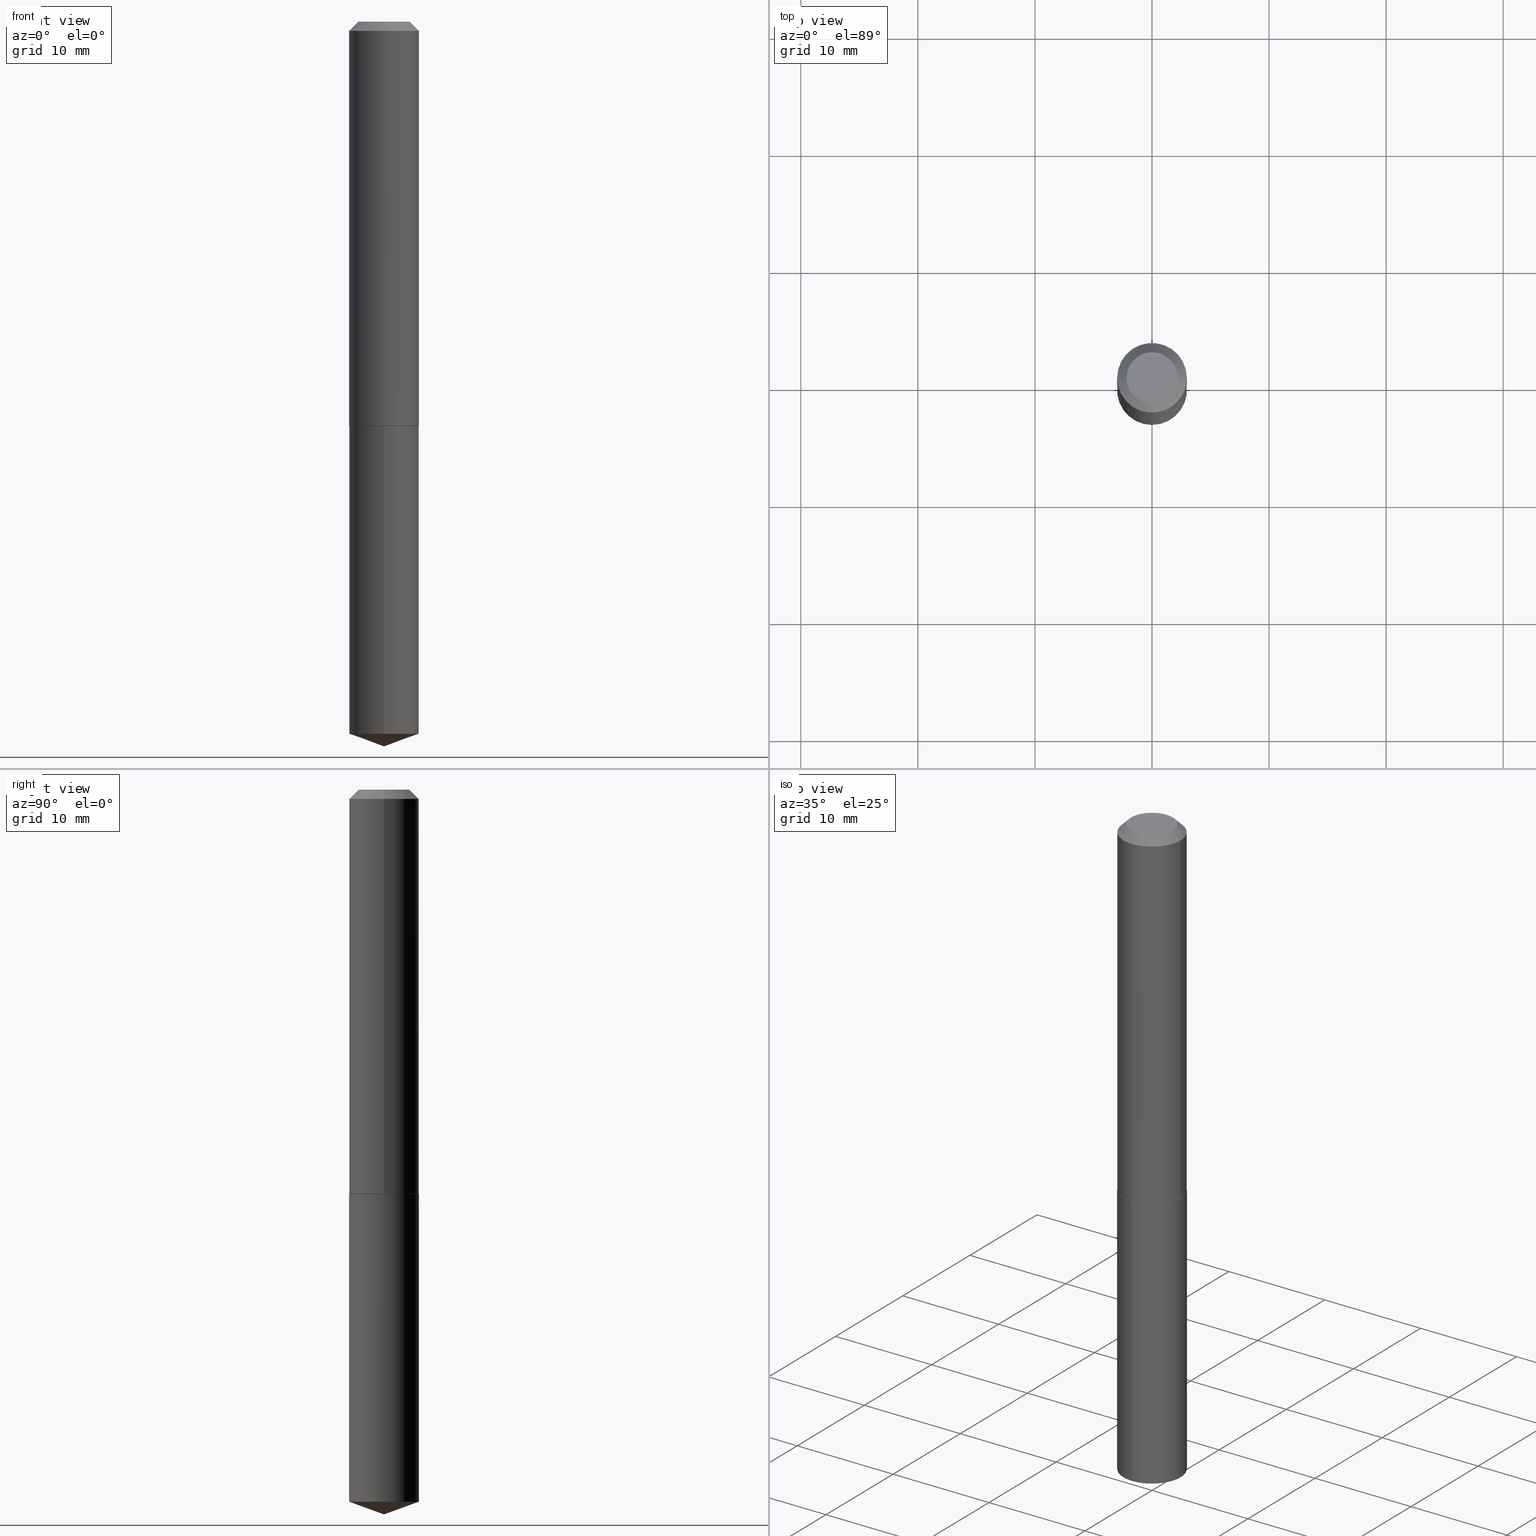
[diagram: canonical four-view strip — front | top / right | iso, engineering-drawing reading convention]
A machine part, canonical four-view strip (front | top / right | iso — engineering-drawing reading convention). The complete STEP part file that produces these views, byte-faithful:
ISO-10303-21;
HEADER;
FILE_DESCRIPTION (( 'STEP AP203' ),
    '1' );
FILE_NAME ('56115.STEP',
    '2024-04-22T20:19:50',
    ( '' ),
    ( '' ),
    'SwSTEP 2.0',
    'SolidWorks 2023',
    '' );
FILE_SCHEMA (( 'CONFIG_CONTROL_DESIGN' ));
ENDSEC;

DATA;
#1 = ORIENTED_EDGE ( 'NONE', *, *, #376, .T. ) ;
#2 =( NAMED_UNIT ( * ) SI_UNIT ( $, .STERADIAN. ) SOLID_ANGLE_UNIT ( ) );
#3 = VERTEX_POINT ( 'NONE', #149 ) ;
#4 = VERTEX_POINT ( 'NONE', #222 ) ;
#5 = CARTESIAN_POINT ( 'NONE',  ( 3.324370295128073356E-29, -4.746319732023370074E-15, -1.359399999999999498 ) ) ;
#6 = DIRECTION ( 'NONE',  ( -2.445468806185136597E-29, 3.491481338843145583E-15, 1.000000000000000000 ) ) ;
#7 = AXIS2_PLACEMENT_3D ( 'NONE', #152, #12, #278 ) ;
#8 = VECTOR ( 'NONE', #209, 39.37007874015748143 ) ;
#9 = DIRECTION ( 'NONE',  ( -2.445468806185136597E-29, 3.491481338843145583E-15, 1.000000000000000000 ) ) ;
#10 = ADVANCED_FACE ( 'NONE', ( #66 ), #335, .T. ) ;
#11 = CARTESIAN_POINT ( 'NONE',  ( 0.000000000000000000, 0.000000000000000000, 0.000000000000000000 ) ) ;
#12 = DIRECTION ( 'NONE',  ( -2.445142826473885278E-29, 3.491948160343270663E-15, 1.000000000000000000 ) ) ;
#13 = CONICAL_SURFACE ( 'NONE', #360, 0.1172000000000001929, 0.7853981633978580623 ) ;
#14 = CARTESIAN_POINT ( 'NONE',  ( 0.000000000000000000, 0.000000000000000000, 0.000000000000000000 ) ) ;
#15 = ADVANCED_FACE ( 'NONE', ( #38 ), #343, .T. ) ;
#16 = DIMENSIONAL_EXPONENTS ( 1.000000000000000000, 0.000000000000000000, 0.000000000000000000, 0.000000000000000000, 0.000000000000000000, 0.000000000000000000, 0.000000000000000000 ) ;
#17 = LINE ( 'NONE', #298, #49 ) ;
#18 = DIRECTION ( 'NONE',  ( 6.982962677686265922E-15, 1.000000000000000000, -3.491948160343270663E-15 ) ) ;
#19 = DIRECTION ( 'NONE',  ( -2.445142826473885278E-29, 3.491948160343270663E-15, 1.000000000000000000 ) ) ;
#20 = VECTOR ( 'NONE', #255, 39.37007874015748143 ) ;
#21 = LOCAL_TIME ( 16, 19, 50.00000000000000000, #87 ) ;
#22 = DIRECTION ( 'NONE',  ( 1.000000000000000000, -6.982962677686266711E-15, 0.000000000000000000 ) ) ;
#23 = DIRECTION ( 'NONE',  ( -0.7071067811865451302, 2.468850131082231817E-15, -0.7071067811865499042 ) ) ;
#24 = EDGE_LOOP ( 'NONE', ( #264, #110 ) ) ;
#25 = MECHANICAL_CONTEXT ( 'NONE', #196, 'mechanical' ) ;
#26 = ORIENTED_EDGE ( 'NONE', *, *, #203, .F. ) ;
#27 = ORIENTED_EDGE ( 'NONE', *, *, #113, .F. ) ;
#28 = ADVANCED_FACE ( 'NONE', ( #344 ), #237, .T. ) ;
#29 =( NAMED_UNIT ( * ) PLANE_ANGLE_UNIT ( ) SI_UNIT ( $, .RADIAN. ) );
#30 = ORIENTED_EDGE ( 'NONE', *, *, #277, .F. ) ;
#31 = LENGTH_MEASURE_WITH_UNIT ( LENGTH_MEASURE( 0.02539999999999999897 ), #211 );
#32 = EDGE_LOOP ( 'NONE', ( #385, #1, #88, #231 ) ) ;
#33 = AXIS2_PLACEMENT_3D ( 'NONE', #219, #37, #64 ) ;
#34 = PRODUCT_DEFINITION_FORMATION_WITH_SPECIFIED_SOURCE ( 'ANY', '', #381, .NOT_KNOWN. ) ;
#35 = DIRECTION ( 'NONE',  ( -2.445468806185136597E-29, 3.491481338843145583E-15, 1.000000000000000000 ) ) ;
#36 = SECURITY_CLASSIFICATION_LEVEL ( 'unclassified' ) ;
#37 = DIRECTION ( 'NONE',  ( 2.438088387897960049E-29, -3.491481338843145188E-15, -1.000000000000000000 ) ) ;
#38 = FACE_OUTER_BOUND ( 'NONE', #362, .T. ) ;
#39 = LOCAL_TIME ( 16, 19, 50.00000000000000000, #341 ) ;
#40 = DIRECTION ( 'NONE',  ( -2.445468806185136597E-29, 3.491481338843145583E-15, 1.000000000000000000 ) ) ;
#41 = DESIGN_CONTEXT ( 'detailed design', #57, 'design' ) ;
#42 = DIRECTION ( 'NONE',  ( -2.445142826473885278E-29, 3.491948160343270663E-15, 1.000000000000000000 ) ) ;
#43 = CARTESIAN_POINT ( 'NONE',  ( 5.960035639530094647E-29, -8.511623640836722067E-15, -2.437500000000000000 ) ) ;
#44 = LINE ( 'NONE', #161, #131 ) ;
#45 = CARTESIAN_POINT ( 'NONE',  ( 7.642090019328600035E-31, -1.091087918388489897E-16, -0.03125000000000020123 ) ) ;
#46 = DIRECTION ( 'NONE',  ( 2.445468806185136597E-29, -3.491481338843145583E-15, -1.000000000000000000 ) ) ;
#47 = CIRCLE ( 'NONE', #193, 0.1171999999999999986 ) ;
#48 = DIRECTION ( 'NONE',  ( -6.982962677686265922E-15, -1.000000000000000000, 2.330928322239132474E-15 ) ) ;
#49 = VECTOR ( 'NONE', #23, 39.37007874015748143 ) ;
#50 = DATE_AND_TIME ( #143, #21 ) ;
#51 = EDGE_LOOP ( 'NONE', ( #106, #244, #350, #388 ) ) ;
#52 = DATE_AND_TIME ( #356, #321 ) ;
#53 = ORIENTED_EDGE ( 'NONE', *, *, #212, .T. ) ;
#54 = PERSON_AND_ORGANIZATION_ROLE ( 'design_supplier' ) ;
#55 = ORIENTED_EDGE ( 'NONE', *, *, #162, .T. ) ;
#56 = AXIS2_PLACEMENT_3D ( 'NONE', #5, #369, #155 ) ;
#57 = APPLICATION_CONTEXT ( 'configuration controlled 3d designs of mechanical parts and assemblies' ) ;
#58 = EDGE_CURVE ( 'NONE', #330, #185, #123, .T. ) ;
#59 = ORIENTED_EDGE ( 'NONE', *, *, #245, .F. ) ;
#60 = DIRECTION ( 'NONE',  ( -6.982962677686265922E-15, -1.000000000000000000, 2.330928322239132474E-15 ) ) ;
#61 = ORIENTED_EDGE ( 'NONE', *, *, #266, .F. ) ;
#62 = DIRECTION ( 'NONE',  ( -2.445468806185136597E-29, 3.491481338843145583E-15, 1.000000000000000000 ) ) ;
#63 = APPROVAL_PERSON_ORGANIZATION ( #384, #338, #181 ) ;
#64 = DIRECTION ( 'NONE',  ( -1.000000000000000000, 6.982962677686265922E-15, -4.876176775795935793E-29 ) ) ;
#65 = DIRECTION ( 'NONE',  ( -2.445142826473885278E-29, 3.491948160343270663E-15, 1.000000000000000000 ) ) ;
#66 = FACE_OUTER_BOUND ( 'NONE', #317, .T. ) ;
#67 = APPROVAL ( #294, 'UNSPECIFIED' ) ;
#68 = AXIS2_PLACEMENT_3D ( 'NONE', #347, #72, #198 ) ;
#69 = CARTESIAN_POINT ( 'NONE',  ( -9.030498683285852070E-28, 1.289672849855731680E-13, 36.93257874015748143 ) ) ;
#70 = CARTESIAN_POINT ( 'NONE',  ( -0.1172000000000001929, -3.911817905043111360E-15, -1.358899999999999775 ) ) ;
#71 = ADVANCED_BREP_SHAPE_REPRESENTATION ( '56115', ( #199, #336, #328 ), #207 ) ;
#72 = DIRECTION ( 'NONE',  ( -2.445468806185136597E-29, 3.491481338843145583E-15, 1.000000000000000000 ) ) ;
#73 = CLOSED_SHELL ( 'NONE', ( #284, #10, #92, #292, #78, #352, #240, #172 ) ) ;
#74 = CC_DESIGN_SECURITY_CLASSIFICATION ( #147, ( #34 ) ) ;
#75 = DIRECTION ( 'NONE',  ( 2.445468806185136597E-29, -3.491481338843145583E-15, -1.000000000000000000 ) ) ;
#76 = ORIENTED_EDGE ( 'NONE', *, *, #58, .F. ) ;
#77 = DIRECTION ( 'NONE',  ( -2.445468806185136877E-29, 3.491481338843145188E-15, 1.000000000000000000 ) ) ;
#78 = ADVANCED_FACE ( 'NONE', ( #121 ), #177, .T. ) ;
#79 = CARTESIAN_POINT ( 'NONE',  ( 7.642090019328600035E-31, -1.091087918388489897E-16, -0.03125000000000020123 ) ) ;
#80 = CC_DESIGN_APPROVAL ( #67, ( #34 ) ) ;
#81 = APPLICATION_PROTOCOL_DEFINITION ( 'international standard', 'config_control_design', 1994, #196 ) ;
#82 = ORIENTED_EDGE ( 'NONE', *, *, #116, .T. ) ;
#83 = APPROVAL_ROLE ( '' ) ;
#84 = ORIENTED_EDGE ( 'NONE', *, *, #217, .T. ) ;
#85 = CARTESIAN_POINT ( 'NONE',  ( 3.324370295128073917E-29, -4.746319732023370863E-15, -1.359399999999999720 ) ) ;
#86 = ORIENTED_EDGE ( 'NONE', *, *, #134, .F. ) ;
#87 = COORDINATED_UNIVERSAL_TIME_OFFSET ( 5, 0, .BEHIND. ) ;
#88 = ORIENTED_EDGE ( 'NONE', *, *, #165, .F. ) ;
#89 = DIRECTION ( 'NONE',  ( -6.561838499445204007E-15, -0.9396926207859077618, 0.3420201433256704338 ) ) ;
#90 = PLANE ( 'NONE',  #33 ) ;
#91 = AXIS2_PLACEMENT_3D ( 'NONE', #45, #98, #22 ) ;
#92 = ADVANCED_FACE ( 'NONE', ( #195 ), #13, .T. ) ;
#93 = CARTESIAN_POINT ( 'NONE',  ( 3.323147560724981676E-29, -4.744573991353950148E-15, -1.358899999999999775 ) ) ;
#94 = CARTESIAN_POINT ( 'NONE',  ( -0.1171999999999999986, -1.594085305285560836E-15, -0.03125000000000020123 ) ) ;
#95 = CARTESIAN_POINT ( 'NONE',  ( 5.960035639530094647E-29, -8.511623640836722067E-15, -2.437500000000000000 ) ) ;
#96 = AXIS2_PLACEMENT_3D ( 'NONE', #115, #40, #251 ) ;
#97 = AXIS2_PLACEMENT_3D ( 'NONE', #85, #296, #60 ) ;
#98 = DIRECTION ( 'NONE',  ( -2.445468806185136597E-29, 3.491481338843145583E-15, 1.000000000000000000 ) ) ;
#99 = DIRECTION ( 'NONE',  ( -2.445468806185136877E-29, 3.491481338843145188E-15, 1.000000000000000000 ) ) ;
#100 = FACE_OUTER_BOUND ( 'NONE', #111, .T. ) ;
#101 = DIRECTION ( 'NONE',  ( -6.982962677686265922E-15, -1.000000000000000000, 2.330928322239132474E-15 ) ) ;
#102 = DIRECTION ( 'NONE',  ( -6.982962677686265922E-15, -1.000000000000000000, 2.330928322239132474E-15 ) ) ;
#103 = PERSON_AND_ORGANIZATION ( #176, #194 ) ;
#104 = CONICAL_SURFACE ( 'NONE', #124, 0.1171999999999999986, 0.7853981633974449483 ) ;
#105 = CYLINDRICAL_SURFACE ( 'NONE', #97, 0.1171999999999999986 ) ;
#106 = ORIENTED_EDGE ( 'NONE', *, *, #376, .F. ) ;
#107 = DATE_AND_TIME ( #387, #254 ) ;
#108 = VERTEX_POINT ( 'NONE', #337 ) ;
#109 = DATE_TIME_ROLE ( 'creation_date' ) ;
#110 = ORIENTED_EDGE ( 'NONE', *, *, #156, .F. ) ;
#111 = EDGE_LOOP ( 'NONE', ( #26, #164, #82, #359 ) ) ;
#112 = CC_DESIGN_APPROVAL ( #338, ( #378 ) ) ;
#113 = EDGE_CURVE ( 'NONE', #185, #274, #130, .T. ) ;
#114 = ORIENTED_EDGE ( 'NONE', *, *, #235, .F. ) ;
#115 = CARTESIAN_POINT ( 'NONE',  ( 3.323147560724981676E-29, -4.744573991353950148E-15, -1.358899999999999775 ) ) ;
#116 = EDGE_CURVE ( 'NONE', #363, #140, #47, .T. ) ;
#117 = DIRECTION ( 'NONE',  ( 1.000000000000000000, -6.982962677686265922E-15, 4.876153431562314205E-29 ) ) ;
#118 = AXIS2_PLACEMENT_3D ( 'NONE', #312, #42, #370 ) ;
#119 = VECTOR ( 'NONE', #261, 39.37007874015748143 ) ;
#120 = CC_DESIGN_PERSON_AND_ORGANIZATION_ASSIGNMENT ( #223, #252, ( #147 ) ) ;
#121 = FACE_OUTER_BOUND ( 'NONE', #51, .T. ) ;
#122 = DIRECTION ( 'NONE',  ( 1.000000000000000000, -6.982962677686266711E-15, 0.000000000000000000 ) ) ;
#123 = LINE ( 'NONE', #95, #349 ) ;
#124 = AXIS2_PLACEMENT_3D ( 'NONE', #79, #75, #259 ) ;
#125 = AXIS2_PLACEMENT_3D ( 'NONE', #14, #229, #126 ) ;
#126 = DIRECTION ( 'NONE',  ( 1.000000000000000000, -6.982962677686266711E-15, 4.876176775795936353E-29 ) ) ;
#127 = DIRECTION ( 'NONE',  ( -2.445142826473885278E-29, 3.491948160343270663E-15, 1.000000000000000000 ) ) ;
#128 = EDGE_CURVE ( 'NONE', #330, #274, #311, .T. ) ;
#129 = DIRECTION ( 'NONE',  ( -2.445142826473885278E-29, 3.491948160343270663E-15, 1.000000000000000000 ) ) ;
#130 = CIRCLE ( 'NONE', #7, 0.1171999999999999986 ) ;
#131 = VECTOR ( 'NONE', #285, 39.37007874015748143 ) ;
#132 = CARTESIAN_POINT ( 'NONE',  ( 0.1172000000000001929, -5.562977217178781787E-15, -1.358899999999999775 ) ) ;
#133 = CC_DESIGN_PERSON_AND_ORGANIZATION_ASSIGNMENT ( #103, #171, ( #378 ) ) ;
#134 = EDGE_CURVE ( 'NONE', #108, #262, #272, .T. ) ;
#135 = CARTESIAN_POINT ( 'NONE',  ( 8.327560863108961782E-16, 0.1171999999999952663, -1.359399999999999942 ) ) ;
#136 = PERSON_AND_ORGANIZATION_ROLE ( 'design_owner' ) ;
#137 = ORIENTED_EDGE ( 'NONE', *, *, #245, .T. ) ;
#138 = CIRCLE ( 'NONE', #320, 0.1172000000000001929 ) ;
#139 = COORDINATED_UNIVERSAL_TIME_OFFSET ( 5, 0, .BEHIND. ) ;
#140 = VERTEX_POINT ( 'NONE', #94 ) ;
#141 = DIRECTION ( 'NONE',  ( 0.000000000000000000, 0.000000000000000000, 1.000000000000000000 ) ) ;
#142 = ORIENTED_EDGE ( 'NONE', *, *, #364, .F. ) ;
#143 = CALENDAR_DATE ( 2024, 22, 4 ) ;
#144 = ORIENTED_EDGE ( 'NONE', *, *, #165, .T. ) ;
#145 = AXIS2_PLACEMENT_3D ( 'NONE', #375, #129, #258 ) ;
#146 = ORIENTED_EDGE ( 'NONE', *, *, #128, .F. ) ;
#147 = SECURITY_CLASSIFICATION ( '', '', #36 ) ;
#148 = DIRECTION ( 'NONE',  ( 1.000000000000000000, -6.982962677686265922E-15, 4.876153431562314205E-29 ) ) ;
#149 = CARTESIAN_POINT ( 'NONE',  ( 0.1172000000000001929, -5.562977217178781787E-15, -1.358899999999999775 ) ) ;
#150 = APPROVAL ( #339, 'UNSPECIFIED' ) ;
#151 = DATE_TIME_ROLE ( 'classification_date' ) ;
#152 = CARTESIAN_POINT ( 'NONE',  ( 5.856175557246273270E-29, -8.362031923425486849E-15, -2.394842688544001064 ) ) ;
#153 = CC_DESIGN_APPROVAL ( #150, ( #147 ) ) ;
#154 = COORDINATED_UNIVERSAL_TIME_OFFSET ( 5, 0, .BEHIND. ) ;
#155 = DIRECTION ( 'NONE',  ( 1.000000000000000000, -6.982962677686264344E-15, 0.000000000000000000 ) ) ;
#156 = EDGE_CURVE ( 'NONE', #213, #4, #263, .T. ) ;
#157 = CARTESIAN_POINT ( 'NONE',  ( 3.323147560724981676E-29, -4.744573991353950148E-15, -1.358899999999999775 ) ) ;
#158 = EDGE_CURVE ( 'NONE', #185, #323, #256, .T. ) ;
#159 = FACE_OUTER_BOUND ( 'NONE', #327, .T. ) ;
#160 = CIRCLE ( 'NONE', #145, 0.1171999999999999986 ) ;
#161 = CARTESIAN_POINT ( 'NONE',  ( 0.1171999999999999986, -9.131591571776724060E-16, -0.03125000000000020123 ) ) ;
#162 = EDGE_CURVE ( 'NONE', #239, #3, #373, .T. ) ;
#163 = DIRECTION ( 'NONE',  ( -2.445142826473885278E-29, 3.491948160343270663E-15, 1.000000000000000000 ) ) ;
#164 = ORIENTED_EDGE ( 'NONE', *, *, #364, .T. ) ;
#165 = EDGE_CURVE ( 'NONE', #3, #239, #138, .T. ) ;
#166 = DIRECTION ( 'NONE',  ( -2.438088387897960049E-29, 3.491481338843145188E-15, 1.000000000000000000 ) ) ;
#167 = AXIS2_PLACEMENT_3D ( 'NONE', #157, #62, #275 ) ;
#168 = AXIS2_PLACEMENT_3D ( 'NONE', #305, #6, #117 ) ;
#169 = APPROVAL_PERSON_ORGANIZATION ( #303, #150, #220 ) ;
#170 = CARTESIAN_POINT ( 'NONE',  ( 3.324370295128073917E-29, -4.746319732023370863E-15, -1.359399999999999720 ) ) ;
#171 = PERSON_AND_ORGANIZATION_ROLE ( 'creator' ) ;
#172 = ADVANCED_FACE ( 'NONE', ( #366 ), #90, .F. ) ;
#173 = EDGE_LOOP ( 'NONE', ( #208, #355 ) ) ;
#174 = PERSON_AND_ORGANIZATION ( #176, #194 ) ;
#175 = ORIENTED_EDGE ( 'NONE', *, *, #249, .T. ) ;
#176 = PERSON ( 'UNSPECIFIED', 'UNSPECIFIED', 'UNSPECIFIED', ('UNSPECIFIED'), ('UNSPECIFIED'), ('UNSPECIFIED') ) ;
#177 = CONICAL_SURFACE ( 'NONE', #167, 0.1172000000000001929, 0.7853981633978580623 ) ;
#178 = PERSON_AND_ORGANIZATION ( #176, #194 ) ;
#179 = LOCAL_TIME ( 16, 19, 50.00000000000000000, #154 ) ;
#180 = EDGE_LOOP ( 'NONE', ( #142, #86, #357, #210 ) ) ;
#181 = APPROVAL_ROLE ( '' ) ;
#182 = ORIENTED_EDGE ( 'NONE', *, *, #158, .F. ) ;
#183 = CC_DESIGN_PERSON_AND_ORGANIZATION_ASSIGNMENT ( #326, #54, ( #34 ) ) ;
#184 = LINE ( 'NONE', #236, #8 ) ;
#185 = VERTEX_POINT ( 'NONE', #189 ) ;
#186 = DATE_AND_TIME ( #250, #179 ) ;
#187 = CIRCLE ( 'NONE', #206, 0.1171999999999999986 ) ;
#188 = DIRECTION ( 'NONE',  ( -2.445468806185136597E-29, 3.491481338843145583E-15, 1.000000000000000000 ) ) ;
#189 = CARTESIAN_POINT ( 'NONE',  ( -8.184032258247719810E-16, -0.1172000000000083947, -2.394842688544001064 ) ) ;
#190 = DATE_AND_TIME ( #365, #39 ) ;
#191 = DIRECTION ( 'NONE',  ( -2.445142826473885278E-29, 3.491948160343270663E-15, 1.000000000000000000 ) ) ;
#192 = DIRECTION ( 'NONE',  ( -2.445142826473885278E-29, 3.491948160343270663E-15, 1.000000000000000000 ) ) ;
#193 = AXIS2_PLACEMENT_3D ( 'NONE', #304, #9, #340 ) ;
#194 = ORGANIZATION ( 'UNSPECIFIED', 'UNSPECIFIED', '' ) ;
#195 = FACE_OUTER_BOUND ( 'NONE', #32, .T. ) ;
#196 = APPLICATION_CONTEXT ( 'configuration controlled 3d designs of mechanical parts and assemblies' ) ;
#197 = CARTESIAN_POINT ( 'NONE',  ( -8.184032258247971259E-16, -0.1172000000000047448, -1.359399999999999498 ) ) ;
#198 = DIRECTION ( 'NONE',  ( 1.000000000000000000, -6.982962677686264344E-15, 0.000000000000000000 ) ) ;
#199 = MANIFOLD_SOLID_BREP ( 'Body-Move/Copy2[1]', #310 ) ;
#200 = AXIS2_PLACEMENT_3D ( 'NONE', #11, #257, #308 ) ;
#201 = FACE_OUTER_BOUND ( 'NONE', #325, .T. ) ;
#202 = PRODUCT_RELATED_PRODUCT_CATEGORY ( 'detail', '', ( #381 ) ) ;
#203 = EDGE_CURVE ( 'NONE', #262, #108, #289, .T. ) ;
#204 = DIRECTION ( 'NONE',  ( -1.000000000000000000, 6.982962677686266711E-15, 0.000000000000000000 ) ) ;
#205 = CARTESIAN_POINT ( 'NONE',  ( 7.642090019328600035E-31, -1.091087918388489897E-16, -0.03125000000000020123 ) ) ;
#206 = AXIS2_PLACEMENT_3D ( 'NONE', #379, #127, #48 ) ;
#207 =( GEOMETRIC_REPRESENTATION_CONTEXT ( 3 ) GLOBAL_UNCERTAINTY_ASSIGNED_CONTEXT ( ( #269 ) ) GLOBAL_UNIT_ASSIGNED_CONTEXT ( ( #354, #29, #2 ) ) REPRESENTATION_CONTEXT ( 'NONE', 'WORKASPACE' ) );
#208 = ORIENTED_EDGE ( 'NONE', *, *, #134, .T. ) ;
#209 = DIRECTION ( 'NONE',  ( -0.7071067811868372299, 7.493145998871401767E-15, 0.7071067811862578045 ) ) ;
#210 = ORIENTED_EDGE ( 'NONE', *, *, #266, .T. ) ;
#211 =( LENGTH_UNIT ( ) NAMED_UNIT ( * ) SI_UNIT ( $, .METRE. ) );
#212 = EDGE_CURVE ( 'NONE', #274, #297, #368, .T. ) ;
#213 = VERTEX_POINT ( 'NONE', #234 ) ;
#214 = ORIENTED_EDGE ( 'NONE', *, *, #58, .T. ) ;
#215 = ORIENTED_EDGE ( 'NONE', *, *, #249, .F. ) ;
#216 = CARTESIAN_POINT ( 'NONE',  ( 5.960929684742696497E-29, -8.510354446542181969E-15, -2.437500000000000000 ) ) ;
#217 = EDGE_CURVE ( 'NONE', #274, #185, #160, .T. ) ;
#218 = CIRCLE ( 'NONE', #91, 0.1171999999999999986 ) ;
#219 = CARTESIAN_POINT ( 'NONE',  ( -1.167985862904640673E-47, 1.667574263899824362E-33, 4.776122516674691392E-19 ) ) ;
#220 = APPROVAL_ROLE ( '' ) ;
#221 = CARTESIAN_POINT ( 'NONE',  ( 8.327560863108705402E-16, 0.1171999999999952524, -1.359399999999999942 ) ) ;
#222 = CARTESIAN_POINT ( 'NONE',  ( 0.1167000000000001508, -5.561231476509358705E-15, -1.359399999999999498 ) ) ;
#223 = PERSON_AND_ORGANIZATION ( #176, #194 ) ;
#224 = CARTESIAN_POINT ( 'NONE',  ( 3.323147560724981676E-29, -4.744573991353950148E-15, -1.358899999999999775 ) ) ;
#225 = CIRCLE ( 'NONE', #68, 0.1167000000000001508 ) ;
#226 = AXIS2_PLACEMENT_3D ( 'NONE', #205, #46, #204 ) ;
#227 = LINE ( 'NONE', #132, #119 ) ;
#228 = ADVANCED_FACE ( 'NONE', ( #201 ), #286, .F. ) ;
#229 = DIRECTION ( 'NONE',  ( -2.445468806185136597E-29, 3.491481338843145583E-15, 1.000000000000000000 ) ) ;
#230 = PLANE ( 'NONE',  #273 ) ;
#231 = ORIENTED_EDGE ( 'NONE', *, *, #300, .F. ) ;
#232 = AXIS2_PLACEMENT_3D ( 'NONE', #290, #288, #18 ) ;
#233 = LINE ( 'NONE', #351, #386 ) ;
#234 = CARTESIAN_POINT ( 'NONE',  ( -0.1167000000000001508, -3.914467132217221772E-15, -1.359399999999999498 ) ) ;
#235 = EDGE_CURVE ( 'NONE', #297, #323, #187, .T. ) ;
#236 = CARTESIAN_POINT ( 'NONE',  ( -0.1172000000000001929, -3.911817905043111360E-15, -1.358899999999999775 ) ) ;
#237 = CONICAL_SURFACE ( 'NONE', #380, 108.1684023407337207, 1.221730476396032383 ) ;
#238 = FACE_OUTER_BOUND ( 'NONE', #248, .T. ) ;
#239 = VERTEX_POINT ( 'NONE', #70 ) ;
#240 = ADVANCED_FACE ( 'NONE', ( #353 ), #104, .T. ) ;
#241 = APPROVAL_DATE_TIME ( #107, #67 ) ;
#242 = ORIENTED_EDGE ( 'NONE', *, *, #158, .T. ) ;
#243 = CC_DESIGN_DATE_AND_TIME_ASSIGNMENT ( #186, #151, ( #147 ) ) ;
#244 = ORIENTED_EDGE ( 'NONE', *, *, #156, .T. ) ;
#245 = EDGE_CURVE ( 'NONE', #323, #297, #302, .T. ) ;
#246 = AXIS2_PLACEMENT_3D ( 'NONE', #332, #35, #148 ) ;
#247 = EDGE_LOOP ( 'NONE', ( #76, #299, #27 ) ) ;
#248 = EDGE_LOOP ( 'NONE', ( #301, #84, #242, #114 ) ) ;
#249 = EDGE_CURVE ( 'NONE', #3, #363, #233, .T. ) ;
#250 = CALENDAR_DATE ( 2024, 22, 4 ) ;
#251 = DIRECTION ( 'NONE',  ( 1.000000000000000000, -6.982962677686266711E-15, 0.000000000000000000 ) ) ;
#252 = PERSON_AND_ORGANIZATION_ROLE ( 'classification_officer' ) ;
#253 = DIRECTION ( 'NONE',  ( -6.982962677686268288E-15, -1.000000000000000000, 3.475157955500711931E-15 ) ) ;
#254 = LOCAL_TIME ( 16, 19, 50.00000000000000000, #139 ) ;
#255 = DIRECTION ( 'NONE',  ( 6.676917655467972073E-15, 0.9396926207859100932, 0.3420201433256638834 ) ) ;
#256 = LINE ( 'NONE', #276, #283 ) ;
#257 = DIRECTION ( 'NONE',  ( -2.445468806185136597E-29, 3.491481338843145583E-15, 1.000000000000000000 ) ) ;
#258 = DIRECTION ( 'NONE',  ( -6.982962677686265922E-15, -1.000000000000000000, 2.330928322239132474E-15 ) ) ;
#259 = DIRECTION ( 'NONE',  ( -1.000000000000000000, 6.982962677686266711E-15, 0.000000000000000000 ) ) ;
#260 = CARTESIAN_POINT ( 'NONE',  ( 3.324370295128073917E-29, -4.746319732023370863E-15, -1.359399999999999720 ) ) ;
#261 = DIRECTION ( 'NONE',  ( 0.7071067811868372299, -2.468850131085291414E-15, 0.7071067811862578045 ) ) ;
#262 = VERTEX_POINT ( 'NONE', #377 ) ;
#263 = CIRCLE ( 'NONE', #56, 0.1167000000000001508 ) ;
#264 = ORIENTED_EDGE ( 'NONE', *, *, #358, .F. ) ;
#265 = CC_DESIGN_PERSON_AND_ORGANIZATION_ASSIGNMENT ( #178, #390, ( #34 ) ) ;
#266 = EDGE_CURVE ( 'NONE', #140, #363, #218, .T. ) ;
#267 = CARTESIAN_POINT ( 'NONE',  ( 0.000000000000000000, 0.000000000000000000, 0.000000000000000000 ) ) ;
#268 = ORIENTED_EDGE ( 'NONE', *, *, #116, .F. ) ;
#269 = UNCERTAINTY_MEASURE_WITH_UNIT (LENGTH_MEASURE( 1.000000000000000082E-05 ), #354, 'distance_accuracy_value', 'NONE');
#270 = APPLICATION_PROTOCOL_DEFINITION ( 'international standard', 'config_control_design', 1994, #57 ) ;
#271 = EDGE_LOOP ( 'NONE', ( #293, #53, #59, #182 ) ) ;
#272 = CIRCLE ( 'NONE', #246, 0.08595000000000001250 ) ;
#273 = AXIS2_PLACEMENT_3D ( 'NONE', #170, #166, #319 ) ;
#274 = VERTEX_POINT ( 'NONE', #318 ) ;
#275 = DIRECTION ( 'NONE',  ( 1.000000000000000000, -6.982962677686266711E-15, 0.000000000000000000 ) ) ;
#276 = CARTESIAN_POINT ( 'NONE',  ( -8.184032258247971259E-16, -0.1172000000000047448, -1.359399999999999498 ) ) ;
#277 = EDGE_CURVE ( 'NONE', #239, #140, #313, .T. ) ;
#278 = DIRECTION ( 'NONE',  ( -6.982962677686265922E-15, -1.000000000000000000, 2.330928322239132474E-15 ) ) ;
#279 = AXIS2_PLACEMENT_3D ( 'NONE', #374, #163, #102 ) ;
#280 = DIRECTION ( 'NONE',  ( -2.445468806185136597E-29, 3.491481338843145583E-15, 1.000000000000000000 ) ) ;
#281 = DIRECTION ( 'NONE',  ( 1.000000000000000000, -6.982962677686266711E-15, 0.000000000000000000 ) ) ;
#282 = CYLINDRICAL_SURFACE ( 'NONE', #125, 0.1172000000000000819 ) ;
#283 = VECTOR ( 'NONE', #192, 39.37007874015748143 ) ;
#284 = ADVANCED_FACE ( 'NONE', ( #100 ), #345, .T. ) ;
#285 = DIRECTION ( 'NONE',  ( 0.7071067811865451302, -7.319954787623248157E-15, -0.7071067811865499042 ) ) ;
#286 = PLANE ( 'NONE',  #232 ) ;
#287 = ORIENTED_EDGE ( 'NONE', *, *, #235, .T. ) ;
#288 = DIRECTION ( 'NONE',  ( 2.445142826473884717E-29, -3.491948160343270663E-15, -1.000000000000000000 ) ) ;
#289 = CIRCLE ( 'NONE', #168, 0.08595000000000001250 ) ;
#290 = CARTESIAN_POINT ( 'NONE',  ( 3.324370295128073917E-29, -4.746319732023370863E-15, -1.359399999999999720 ) ) ;
#291 = COORDINATED_UNIVERSAL_TIME_OFFSET ( 5, 0, .BEHIND. ) ;
#292 = ADVANCED_FACE ( 'NONE', ( #348 ), #230, .F. ) ;
#293 = ORIENTED_EDGE ( 'NONE', *, *, #113, .T. ) ;
#294 = APPROVAL_STATUS ( 'not_yet_approved' ) ;
#295 = ORIENTED_EDGE ( 'NONE', *, *, #217, .F. ) ;
#296 = DIRECTION ( 'NONE',  ( -2.445142826473885278E-29, 3.491948160343270663E-15, 1.000000000000000000 ) ) ;
#297 = VERTEX_POINT ( 'NONE', #135 ) ;
#298 = CARTESIAN_POINT ( 'NONE',  ( -0.1171999999999999986, 7.092944339859815519E-16, -0.03125000000000020123 ) ) ;
#299 = ORIENTED_EDGE ( 'NONE', *, *, #128, .T. ) ;
#300 = EDGE_CURVE ( 'NONE', #4, #3, #227, .T. ) ;
#301 = ORIENTED_EDGE ( 'NONE', *, *, #212, .F. ) ;
#302 = CIRCLE ( 'NONE', #333, 0.1171999999999999986 ) ;
#303 = PERSON_AND_ORGANIZATION ( #176, #194 ) ;
#304 = CARTESIAN_POINT ( 'NONE',  ( 7.642090019328600035E-31, -1.091087918388489897E-16, -0.03125000000000020123 ) ) ;
#305 = CARTESIAN_POINT ( 'NONE',  ( -2.335971725809281346E-47, 3.335148527799648725E-33, 9.552245033349382783E-19 ) ) ;
#306 = ADVANCED_FACE ( 'NONE', ( #346 ), #382, .T. ) ;
#307 = SHAPE_DEFINITION_REPRESENTATION ( #322, #71 ) ;
#308 = DIRECTION ( 'NONE',  ( 1.000000000000000000, -6.982962677686266711E-15, 4.876176775795936353E-29 ) ) ;
#309 = CC_DESIGN_DATE_AND_TIME_ASSIGNMENT ( #52, #109, ( #378 ) ) ;
#310 = CLOSED_SHELL ( 'NONE', ( #306, #28, #15, #372, #228 ) ) ;
#311 = LINE ( 'NONE', #216, #20 ) ;
#312 = CARTESIAN_POINT ( 'NONE',  ( -9.030498683285852070E-28, 1.289672849855731680E-13, 36.93257874015748143 ) ) ;
#313 = LINE ( 'NONE', #316, #367 ) ;
#314 = CARTESIAN_POINT ( 'NONE',  ( 0.1171999999999999986, -9.275120176636793588E-16, -0.03125000000000020123 ) ) ;
#315 = APPROVAL_PERSON_ORGANIZATION ( #174, #67, #83 ) ;
#316 = CARTESIAN_POINT ( 'NONE',  ( -0.1172000000000000819, 8.327560863108379997E-16, -5.764991925778754026E-30 ) ) ;
#317 = EDGE_LOOP ( 'NONE', ( #144, #331, #268, #215 ) ) ;
#318 = CARTESIAN_POINT ( 'NONE',  ( 8.327560863108961782E-16, 0.1171999999999916720, -2.394842688544001508 ) ) ;
#319 = DIRECTION ( 'NONE',  ( 1.000000000000000000, -6.982962677686265922E-15, 4.876176775795935793E-29 ) ) ;
#320 = AXIS2_PLACEMENT_3D ( 'NONE', #93, #280, #122 ) ;
#321 = LOCAL_TIME ( 16, 19, 50.00000000000000000, #291 ) ;
#322 = PRODUCT_DEFINITION_SHAPE ( 'NONE', 'NONE',  #378 ) ;
#323 = VERTEX_POINT ( 'NONE', #197 ) ;
#324 = APPROVAL_STATUS ( 'not_yet_approved' ) ;
#325 = EDGE_LOOP ( 'NONE', ( #137, #287 ) ) ;
#326 = PERSON_AND_ORGANIZATION ( #176, #194 ) ;
#327 = EDGE_LOOP ( 'NONE', ( #30, #55, #175, #61 ) ) ;
#328 = AXIS2_PLACEMENT_3D ( 'NONE', #267, #141, #329 ) ;
#329 = DIRECTION ( 'NONE',  ( 1.000000000000000000, 0.000000000000000000, 0.000000000000000000 ) ) ;
#330 = VERTEX_POINT ( 'NONE', #43 ) ;
#331 = ORIENTED_EDGE ( 'NONE', *, *, #277, .T. ) ;
#332 = CARTESIAN_POINT ( 'NONE',  ( -2.335971725809281346E-47, 3.335148527799648725E-33, 9.552245033349382783E-19 ) ) ;
#333 = AXIS2_PLACEMENT_3D ( 'NONE', #260, #19, #101 ) ;
#334 = APPROVAL_DATE_TIME ( #190, #150 ) ;
#335 = CYLINDRICAL_SURFACE ( 'NONE', #200, 0.1172000000000000819 ) ;
#336 = MANIFOLD_SOLID_BREP ( 'Body-Move/Copy2[2]', #73 ) ;
#337 = CARTESIAN_POINT ( 'NONE',  ( -0.08595000000000001250, 6.547400380665580863E-16, 9.552245033305502395E-19 ) ) ;
#338 = APPROVAL ( #324, 'UNSPECIFIED' ) ;
#339 = APPROVAL_STATUS ( 'not_yet_approved' ) ;
#340 = DIRECTION ( 'NONE',  ( 1.000000000000000000, -6.982962677686266711E-15, 0.000000000000000000 ) ) ;
#341 = COORDINATED_UNIVERSAL_TIME_OFFSET ( 5, 0, .BEHIND. ) ;
#342 = VECTOR ( 'NONE', #65, 39.37007874015748143 ) ;
#343 = CONICAL_SURFACE ( 'NONE', #118, 108.1684023407337207, 1.221730476396032383 ) ;
#344 = FACE_OUTER_BOUND ( 'NONE', #247, .T. ) ;
#345 = CONICAL_SURFACE ( 'NONE', #226, 0.1171999999999999986, 0.7853981633974449483 ) ;
#346 = FACE_OUTER_BOUND ( 'NONE', #271, .T. ) ;
#347 = CARTESIAN_POINT ( 'NONE',  ( 3.324370295128073356E-29, -4.746319732023370074E-15, -1.359399999999999498 ) ) ;
#348 = FACE_OUTER_BOUND ( 'NONE', #24, .T. ) ;
#349 = VECTOR ( 'NONE', #89, 39.37007874015748143 ) ;
#350 = ORIENTED_EDGE ( 'NONE', *, *, #300, .T. ) ;
#351 = CARTESIAN_POINT ( 'NONE',  ( 0.1172000000000000819, -8.184032258248310470E-16, 5.714879181232841379E-30 ) ) ;
#352 = ADVANCED_FACE ( 'NONE', ( #159 ), #282, .T. ) ;
#353 = FACE_OUTER_BOUND ( 'NONE', #180, .T. ) ;
#354 =( CONVERSION_BASED_UNIT ( 'INCH', #31 ) LENGTH_UNIT ( ) NAMED_UNIT ( #16 ) );
#355 = ORIENTED_EDGE ( 'NONE', *, *, #203, .T. ) ;
#356 = CALENDAR_DATE ( 2024, 22, 4 ) ;
#357 = ORIENTED_EDGE ( 'NONE', *, *, #371, .T. ) ;
#358 = EDGE_CURVE ( 'NONE', #4, #213, #225, .T. ) ;
#359 = ORIENTED_EDGE ( 'NONE', *, *, #371, .F. ) ;
#360 = AXIS2_PLACEMENT_3D ( 'NONE', #224, #188, #281 ) ;
#361 = PERSON_AND_ORGANIZATION ( #176, #194 ) ;
#362 = EDGE_LOOP ( 'NONE', ( #146, #214, #295 ) ) ;
#363 = VERTEX_POINT ( 'NONE', #314 ) ;
#364 = EDGE_CURVE ( 'NONE', #262, #363, #44, .T. ) ;
#365 = CALENDAR_DATE ( 2024, 22, 4 ) ;
#366 = FACE_OUTER_BOUND ( 'NONE', #173, .T. ) ;
#367 = VECTOR ( 'NONE', #99, 39.37007874015748143 ) ;
#368 = LINE ( 'NONE', #221, #342 ) ;
#369 = DIRECTION ( 'NONE',  ( -2.445468806185136597E-29, 3.491481338843145583E-15, 1.000000000000000000 ) ) ;
#370 = DIRECTION ( 'NONE',  ( -6.982962677686268288E-15, -1.000000000000000000, 3.475157955500711931E-15 ) ) ;
#371 = EDGE_CURVE ( 'NONE', #108, #140, #17, .T. ) ;
#372 = ADVANCED_FACE ( 'NONE', ( #238 ), #105, .T. ) ;
#373 = CIRCLE ( 'NONE', #96, 0.1172000000000001929 ) ;
#374 = CARTESIAN_POINT ( 'NONE',  ( 3.324370295128073917E-29, -4.746319732023370863E-15, -1.359399999999999720 ) ) ;
#375 = CARTESIAN_POINT ( 'NONE',  ( 5.856175557246273270E-29, -8.362031923425486849E-15, -2.394842688544001064 ) ) ;
#376 = EDGE_CURVE ( 'NONE', #213, #239, #184, .T. ) ;
#377 = CARTESIAN_POINT ( 'NONE',  ( 0.08595000000000001250, -7.514094800430678722E-16, 9.552245033396635474E-19 ) ) ;
#378 = PRODUCT_DEFINITION ( 'UNKNOWN', '', #34, #41 ) ;
#379 = CARTESIAN_POINT ( 'NONE',  ( 3.324370295128073917E-29, -4.746319732023370863E-15, -1.359399999999999720 ) ) ;
#380 = AXIS2_PLACEMENT_3D ( 'NONE', #69, #191, #253 ) ;
#381 = PRODUCT ( '56115', '56115', '', ( #25 ) ) ;
#382 = CYLINDRICAL_SURFACE ( 'NONE', #279, 0.1171999999999999986 ) ;
#383 = APPROVAL_DATE_TIME ( #50, #338 ) ;
#384 = PERSON_AND_ORGANIZATION ( #176, #194 ) ;
#385 = ORIENTED_EDGE ( 'NONE', *, *, #358, .T. ) ;
#386 = VECTOR ( 'NONE', #77, 39.37007874015748143 ) ;
#387 = CALENDAR_DATE ( 2024, 22, 4 ) ;
#388 = ORIENTED_EDGE ( 'NONE', *, *, #162, .F. ) ;
#389 = CC_DESIGN_PERSON_AND_ORGANIZATION_ASSIGNMENT ( #361, #136, ( #381 ) ) ;
#390 = PERSON_AND_ORGANIZATION_ROLE ( 'creator' ) ;
ENDSEC;
END-ISO-10303-21;
